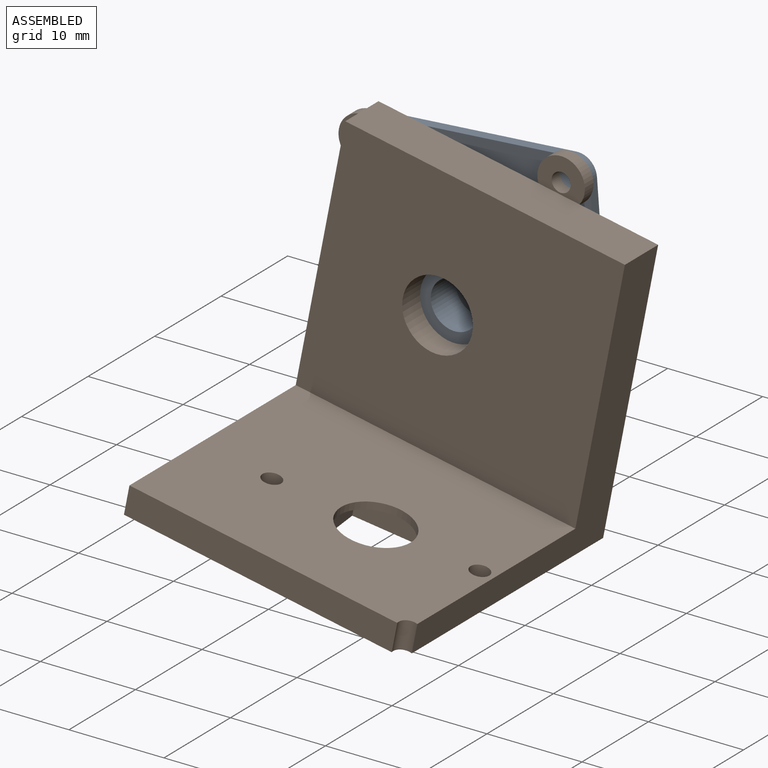
[diagram: assembled view]
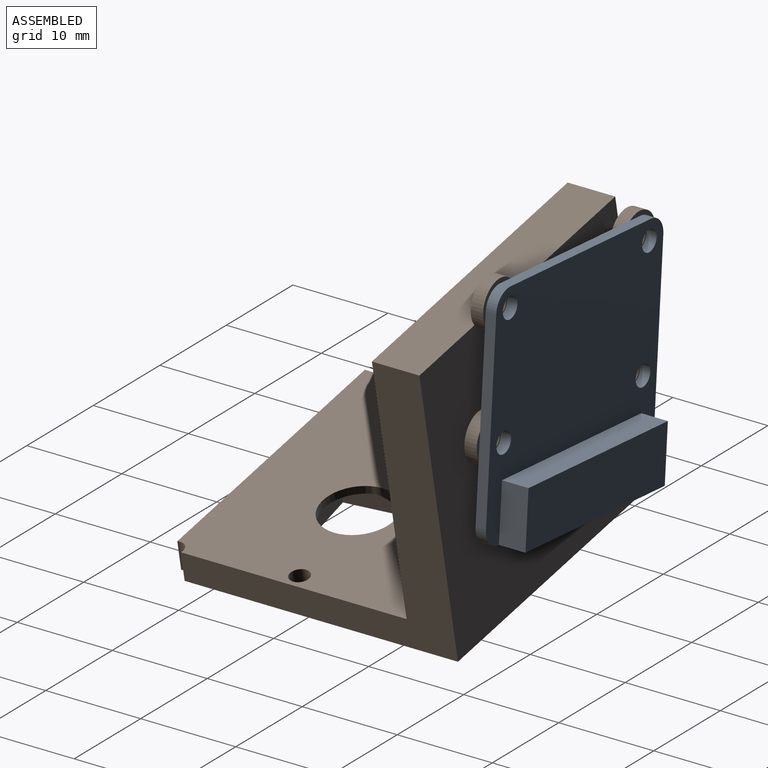
[diagram: assembled view, second angle]
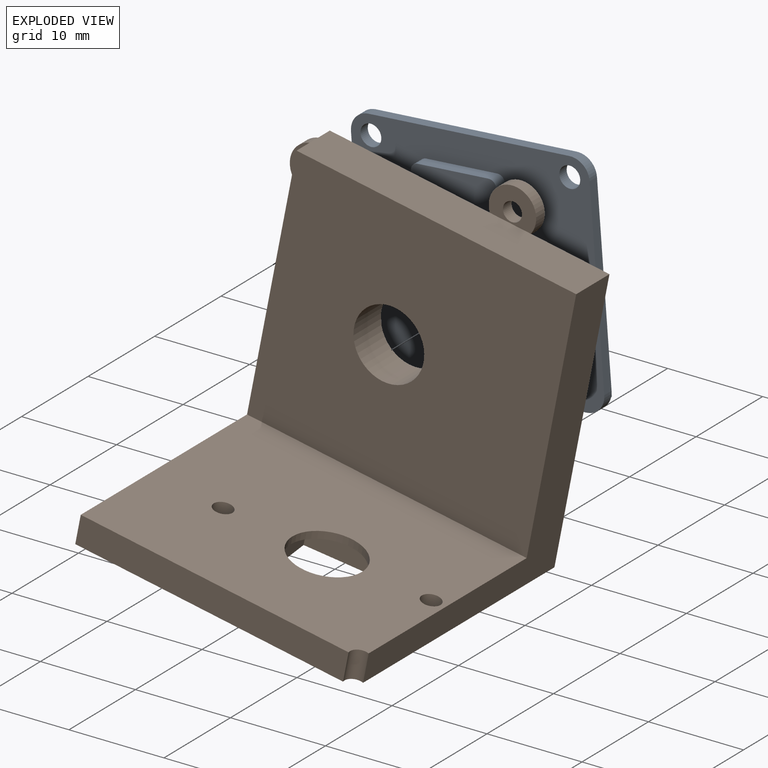
[diagram: exploded view]
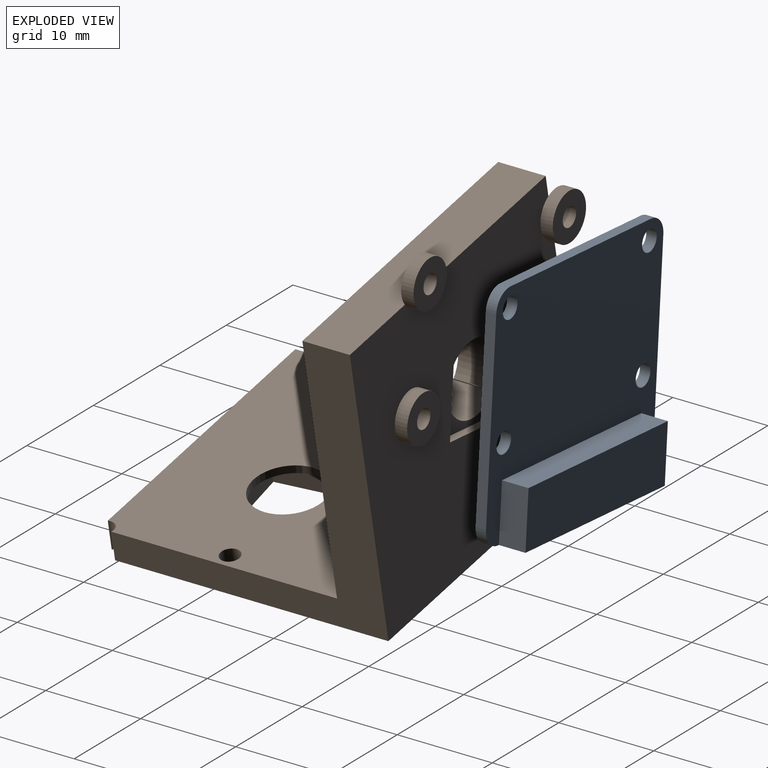
[diagram: exploded view, second angle]
ASSEMBLY  parts=2 mates=2
PART A: 37 faces, bbox 25.2x7.7x24 mm
  f0: plane 8.5x2mm, normal (0,0,1), area 7.6mm2, adj f1,f7,f8,f10,f22,f23,f26
  f1: plane 25.2x24mm, normal (0,-1,0), area 455.2mm2, adj f0,f2,f3,f4,f5,f7,f8,f9
  f2: plane 20x1.1mm, normal (-1,0,0), area 22mm2, adj f1,f6,f17,f20
  f3: plane 21.2x3.9mm, normal (0,0,-1), area 82.1mm2, adj f1,f6,f17,f18,f29,f31,f32
  f4: plane 20x1.1mm, normal (1,0,0), area 22mm2, adj f1,f6,f18,f19
  f5: plane 21.2x1.1mm, normal (0,0,1), area 23.3mm2, adj f1,f6,f19,f20
  f6: plane 25.2x24mm, normal (0,1,0), area 460.2mm2, adj f2,f3,f4,f5,f13,f14,f15,f16
  f7: plane 8.5x2mm, normal (1,0,0), area 17mm2, adj f0,f1,f9,f10
  f8: plane 8.5x2mm, normal (-1,0,0), area 17mm2, adj f0,f1,f9,f10
  f9: plane 8.5x2mm, normal (0,0,-1), area 17mm2, adj f1,f7,f8,f10
  f10: plane 8.5x8.5mm, normal (0,-1,0), area 31mm2, adj f0,f7,f8,f9,f11
  f11: cylinder r=3.62mm len=7.25mm, axis (0,1,0), area 39.9mm2, adj f10,f12
  f12: plane 7.25x7.25mm, normal (0,-1,0), area 21.6mm2, adj f11,f28
  f13: cylinder r=1.1mm len=2.2mm, axis (0,1,0), area 7.6mm2, adj f1,f6
  f14: cylinder r=1.1mm len=2.2mm, axis (0,1,0), area 7.6mm2, adj f1,f6
  f15: cylinder r=1.1mm len=2.2mm, axis (0,1,0), area 7.6mm2, adj f1,f6
  f16: cylinder r=1.1mm len=2.2mm, axis (0,1,0), area 7.6mm2, adj f1,f6
  f17: cylinder r=2mm len=2mm, axis (0,-1,0), area 3.5mm2, adj f1,f2,f3,f6
  f18: cylinder r=2mm len=2mm, axis (0,1,0), area 3.5mm2, adj f1,f3,f4,f6
  f19: cylinder r=2mm len=2mm, axis (0,-1,0), area 3.5mm2, adj f1,f4,f5,f6
  f20: cylinder r=2mm len=2mm, axis (0,1,0), area 3.5mm2, adj f1,f2,f5,f6
  f21: plane 1.3x0.25mm, normal (0,0,-1), area 0.3mm2, adj f1,f26,f33,f36
  f22: plane 2.35x1.3mm, normal (-1,0,0), area 3.1mm2, adj f0,f1,f26,f33
  f23: plane 6.4x1.3mm, normal (1,0,0), area 8.3mm2, adj f0,f1,f26,f34
  f24: plane 7.5x1.3mm, normal (0,0,1), area 9.7mm2, adj f1,f26,f34,f35
  f25: plane 2.55x1.3mm, normal (-1,0,0), area 3.3mm2, adj f1,f26,f35,f36
  f26: plane 9x7.15mm, normal (0,-1,0), area 58.7mm2, adj f0,f21,f22,f23,f24,f25,f33,f34
  f27: plane 5x5mm, normal (0,-1,0), area 19.6mm2, adj f28
  f28: cylinder r=2.5mm len=5mm, axis (0,-1,0), area 58.9mm2, adj f12,f27
  f29: plane 6x2.8mm, normal (1,0,0), area 16.8mm2, adj f3,f6,f30,f32
  f30: plane 21x2.8mm, normal (0,0,1), area 58.8mm2, adj f6,f29,f31,f32
  f31: plane 6x2.8mm, normal (-1,0,0), area 16.8mm2, adj f3,f6,f30,f32
  f32: plane 21x6mm, normal (0,1,0), area 126mm2, adj f3,f29,f30,f31
  f33: cylinder r=0.75mm len=1.3mm, axis (0,-1,0), area 1.5mm2, adj f1,f21,f22,f26
  f34: cylinder r=0.75mm len=1.3mm, axis (0,1,0), area 1.5mm2, adj f1,f23,f24,f26
  f35: cylinder r=0.75mm len=1.3mm, axis (0,1,0), area 1.5mm2, adj f1,f24,f25,f26
  f36: cylinder r=0.75mm len=1.3mm, axis (0,1,0), area 1.5mm2, adj f1,f21,f25,f26
PART B: 41 faces, bbox 33.7x31.6x34 mm
  f0: plane 30x30mm, normal (0,0,-1), area 816.6mm2, adj f1,f2,f4,f5,f32,f33,f34,f35
  f1: plane 30x28.77mm, normal (1,0,0), area 221.3mm2, adj f0,f3,f4,f6,f31,f32
  f2: plane 28.73x3mm, normal (0,-1,0), area 86.2mm2, adj f0,f5,f31,f32
  f3: plane 30x27mm, normal (0,-1,0), area 766.4mm2, adj f1,f5,f6,f30,f31
  f4: plane 30x30mm, normal (0,1,0), area 775.3mm2, adj f0,f1,f5,f6,f7,f9,f12,f15
  f5: plane 30.3x30.3mm, normal (-1,0,0), area 222.3mm2, adj f0,f2,f3,f4,f6,f11,f17,f18
  f6: plane 30x5mm, normal (0,0,1), area 150mm2, adj f1,f3,f4,f5,f14
  f7: cylinder r=2.5mm len=5mm, axis (0,-1,0), area 20.4mm2, adj f4,f8
  f8: plane 5x5mm, normal (0,1,0), area 16.5mm2, adj f7,f24
  f9: cylinder r=2.5mm len=5mm, axis (0,-1,0), area 20.4mm2, adj f4,f10,f11
  f10: plane 5x5mm, normal (0,1,0), area 16.5mm2, adj f9,f22
  f11: plane 0.68x0.02mm, normal (0,-1,0), area 0mm2, adj f5,f9
  f12: cylinder r=2.5mm len=5mm, axis (0,-1,0), area 20.4mm2, adj f4,f13,f14
  f13: plane 5x5mm, normal (0,1,0), area 16.5mm2, adj f12,f20
  f14: plane 5x3.67mm, normal (0,-1,0), area 12.3mm2, adj f6,f12,f20
  f15: cylinder r=2.5mm len=5mm, axis (0,-1,0), area 20.4mm2, adj f4,f16,f17
  f16: plane 5x5mm, normal (0,1,0), area 16.5mm2, adj f15,f19
  f17: plane 5x3.37mm, normal (0,-1,0), area 11mm2, adj f5,f15,f19
  f18: cone r=0mm half-angle=59deg, axis (0,1,0), area 0mm2, adj f5,f19
  f19: cylinder r=1mm len=4mm, axis (0,1,0), area 10.9mm2, adj f5,f16,f17,f18
  f20: cylinder r=1mm len=2mm, axis (0,1,0), area 8.2mm2, adj f13,f14
  f21: cone r=0mm half-angle=59deg, axis (0,1,0), area 3.7mm2, adj f22
  f22: cylinder r=1mm len=4mm, axis (0,1,0), area 25.1mm2, adj f10,f21
  f23: cone r=0mm half-angle=59deg, axis (0,1,0), area 3.7mm2, adj f24
  f24: cylinder r=1mm len=4mm, axis (0,1,0), area 25.1mm2, adj f8,f23
  f25: plane 8.38x2.33mm, normal (-0.96,0,-0.27), area 7.8mm2, adj f4,f26,f28,f29
  f26: plane 8.38x2.33mm, normal (-0.27,0,0.96), area 7.8mm2, adj f4,f25,f27,f29
  f27: plane 8.38x2.33mm, normal (0.96,0,0.27), area 7.8mm2, adj f4,f26,f28,f29
  f28: plane 8.38x2.33mm, normal (0.27,0,-0.96), area 7.8mm2, adj f4,f25,f27,f29
  f29: plane 10.71x10.71mm, normal (0,1,0), area 32.1mm2, adj f25,f26,f27,f28,f30
  f30: cylinder r=3.73mm len=7.45mm, axis (0,1,0), area 96mm2, adj f3,f29
  f31: plane 30x25mm, normal (0,0,1), area 698.7mm2, adj f1,f2,f3,f5,f32,f33,f34,f40
  f32: cylinder r=1mm len=3mm, axis (0,0,-1), area 6.5mm2, adj f0,f1,f2,f31
  f33: cylinder r=1mm len=3mm, axis (0,0,-1), area 18.8mm2, adj f0,f31
  f34: cylinder r=1mm len=3mm, axis (0,0,-1), area 18.8mm2, adj f0,f31
  f35: plane 8.66x2.2mm, normal (1,0.09,0), area 19.1mm2, adj f0,f36,f38,f39
  f36: plane 8.66x2.2mm, normal (0.09,-1,0), area 19.1mm2, adj f0,f35,f37,f39
  f37: plane 8.66x2.2mm, normal (-1,-0.09,0), area 19.1mm2, adj f0,f36,f38,f39
  f38: plane 8.66x2.2mm, normal (-0.09,1,0), area 19.1mm2, adj f0,f35,f37,f39
  f39: plane 9.48x9.48mm, normal (0,0,-1), area 32.1mm2, adj f35,f36,f37,f38,f40
  f40: cylinder r=3.73mm len=7.45mm, axis (0,0,-1), area 18.7mm2, adj f31,f39
PLACE A rot(axis=(0,-1,0),4.4deg) t=(-17.52,-0.72,9.59)mm
PLACE B rot(axis=(0,1,0),11.1deg) t=(-15.41,-3.12,7.84)mm
MATE cylindrical A.f16 <-> B.f7  axis (0,-1,0) through (-7.05,-1.82,10.4)mm
MATE cylindrical A.f15 <-> B.f9  axis (0,-1,0) through (-27.99,-1.82,8.79)mm
